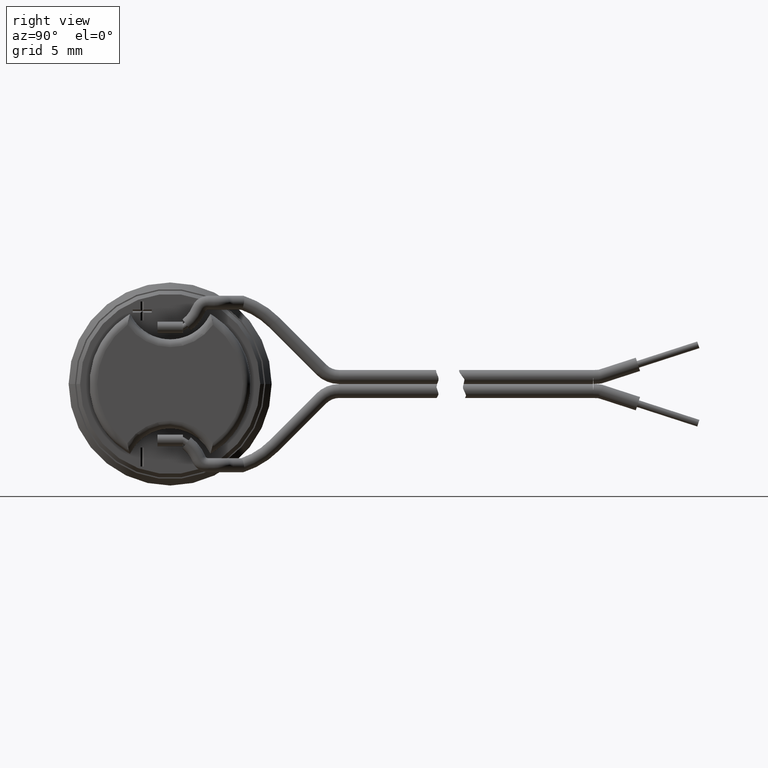
[diagram: clean part render]
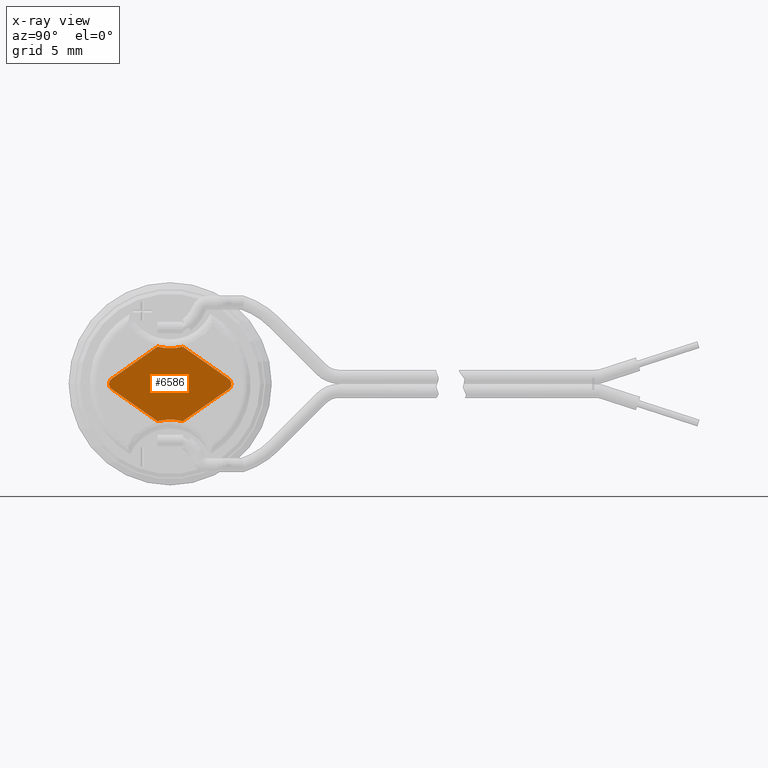
[diagram: x-ray — body ghosted, one internal face saturated and labeled with its STEP entity id]
A machine part, right view, then the same camera in x-ray: the body is ghosted and one INTERNAL B-rep face — a face not visible from any outside direction — is saturated and labeled: STEP entity #6586.
In plain terms, the highlighted planar face has unit normal (1, 0, 0).
Its self-contained STEP definition (entity closure, byte-faithful):
#6416=DIRECTION('',(0.E0,-8.191520442890E-1,5.735764363510E-1));
#6417=VECTOR('',#6416,4.398756751876E0);
#6418=CARTESIAN_POINT('',(2.35E1,4.605639906427E0,4.095760221445E-1));
#6419=LINE('',#6418,#6417);
#6420=CARTESIAN_POINT('',(2.35E1,4.318851688252E0,0.E0));
#6421=DIRECTION('',(1.E0,0.E0,0.E0));
#6422=DIRECTION('',(0.E0,5.735764363511E-1,-8.191520442890E-1));
#6423=AXIS2_PLACEMENT_3D('',#6420,#6421,#6422);
#6425=DIRECTION('',(0.E0,8.191520442890E-1,5.735764363510E-1));
#6426=VECTOR('',#6425,4.398756751876E0);
#6427=CARTESIAN_POINT('',(2.35E1,1.002389320798E0,-2.932599244261E0));
#6428=LINE('',#6427,#6426);
#6429=CARTESIAN_POINT('',(2.35E1,0.E0,-7.E0));
#6430=DIRECTION('',(-1.E0,0.E0,0.E0));
#6431=DIRECTION('',(0.E0,-2.392853000808E-1,9.709493010272E-1));
#6432=AXIS2_PLACEMENT_3D('',#6429,#6430,#6431);
#6434=DIRECTION('',(0.E0,8.191520442890E-1,-5.735764363510E-1));
#6435=VECTOR('',#6434,4.398756751876E0);
#6436=CARTESIAN_POINT('',(2.35E1,-4.605639906427E0,-4.095760221445E-1));
#6437=LINE('',#6436,#6435);
#6438=CARTESIAN_POINT('',(2.35E1,-4.318851688252E0,0.E0));
#6439=DIRECTION('',(1.E0,0.E0,0.E0));
#6440=DIRECTION('',(0.E0,-5.735764363510E-1,8.191520442890E-1));
#6441=AXIS2_PLACEMENT_3D('',#6438,#6439,#6440);
#6443=DIRECTION('',(0.E0,-8.191520442890E-1,-5.735764363510E-1));
#6444=VECTOR('',#6443,4.398756751876E0);
#6445=CARTESIAN_POINT('',(2.35E1,-1.002389320798E0,2.932599244261E0));
#6446=LINE('',#6445,#6444);
#6447=CARTESIAN_POINT('',(2.35E1,0.E0,7.E0));
#6448=DIRECTION('',(-1.E0,0.E0,0.E0));
#6449=DIRECTION('',(0.E0,2.392853000808E-1,-9.709493010272E-1));
#6450=AXIS2_PLACEMENT_3D('',#6447,#6448,#6449);
#6516=CARTESIAN_POINT('',(2.35E1,4.605639906427E0,4.095760221445E-1));
#6517=CARTESIAN_POINT('',(2.35E1,1.002389320798E0,2.932599244261E0));
#6518=VERTEX_POINT('',#6516);
#6519=VERTEX_POINT('',#6517);
#6520=CARTESIAN_POINT('',(2.35E1,-1.002389320798E0,2.932599244261E0));
#6521=VERTEX_POINT('',#6520);
#6522=CARTESIAN_POINT('',(2.35E1,-4.605639906427E0,4.095760221445E-1));
#6523=VERTEX_POINT('',#6522);
#6524=CARTESIAN_POINT('',(2.35E1,-4.605639906427E0,-4.095760221445E-1));
#6525=VERTEX_POINT('',#6524);
#6526=CARTESIAN_POINT('',(2.35E1,-1.002389320798E0,-2.932599244261E0));
#6527=VERTEX_POINT('',#6526);
#6528=CARTESIAN_POINT('',(2.35E1,1.002389320798E0,-2.932599244261E0));
#6529=VERTEX_POINT('',#6528);
#6530=CARTESIAN_POINT('',(2.35E1,4.605639906427E0,-4.095760221445E-1));
#6531=VERTEX_POINT('',#6530);
#6564=CARTESIAN_POINT('',(2.35E1,0.E0,0.E0));
#6565=DIRECTION('',(1.E0,0.E0,0.E0));
#6566=DIRECTION('',(0.E0,1.E0,0.E0));
#6567=AXIS2_PLACEMENT_3D('',#6564,#6565,#6566);
#6568=PLANE('',#6567);
#6570=ORIENTED_EDGE('',*,*,#6569,.F.);
#6571=ORIENTED_EDGE('',*,*,#6553,.F.);
#6573=ORIENTED_EDGE('',*,*,#6572,.F.);
#6575=ORIENTED_EDGE('',*,*,#6574,.F.);
#6577=ORIENTED_EDGE('',*,*,#6576,.F.);
#6579=ORIENTED_EDGE('',*,*,#6578,.F.);
#6581=ORIENTED_EDGE('',*,*,#6580,.F.);
#6583=ORIENTED_EDGE('',*,*,#6582,.F.);
#6584=EDGE_LOOP('',(#6570,#6571,#6573,#6575,#6577,#6579,#6581,#6583));
#6585=FACE_OUTER_BOUND('',#6584,.F.);
#6586=ADVANCED_FACE('',(#6585),#6568,.T.);
#6424=CIRCLE('',#6423,5.E-1);
#6433=CIRCLE('',#6432,4.189096950208E0);
#6442=CIRCLE('',#6441,5.E-1);
#6451=CIRCLE('',#6450,4.189096950208E0);
#6553=EDGE_CURVE('',#6531,#6518,#6424,.T.);
#6569=EDGE_CURVE('',#6518,#6519,#6419,.T.);
#6572=EDGE_CURVE('',#6529,#6531,#6428,.T.);
#6574=EDGE_CURVE('',#6527,#6529,#6433,.T.);
#6576=EDGE_CURVE('',#6525,#6527,#6437,.T.);
#6578=EDGE_CURVE('',#6523,#6525,#6442,.T.);
#6580=EDGE_CURVE('',#6521,#6523,#6446,.T.);
#6582=EDGE_CURVE('',#6519,#6521,#6451,.T.);